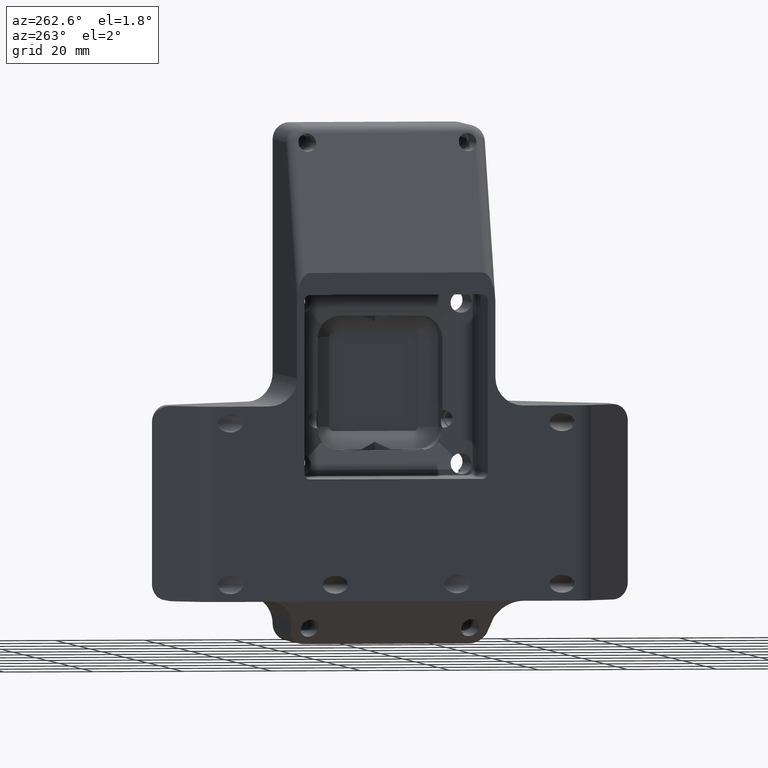
[diagram: clean part render]
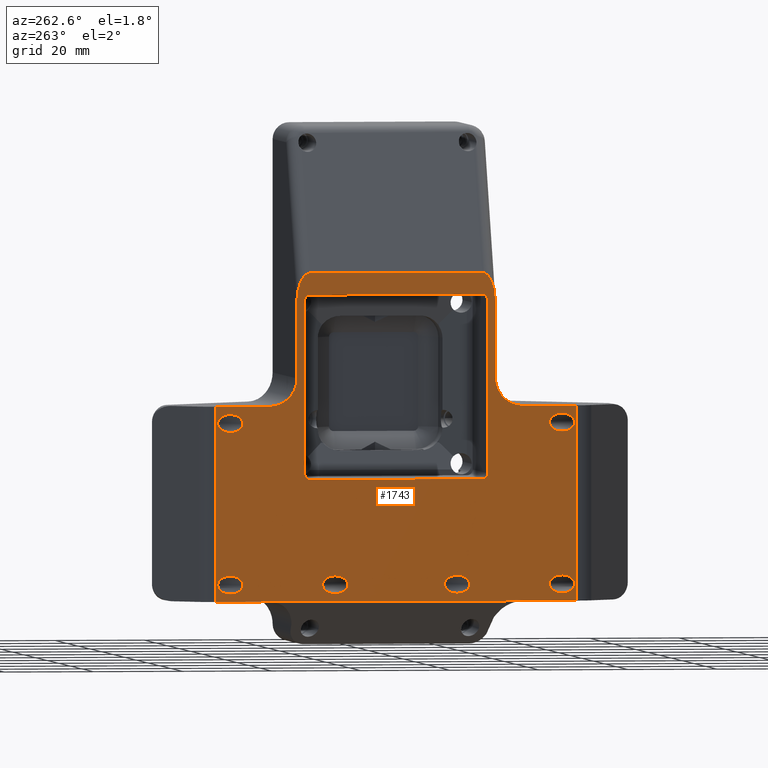
[diagram: same view with one face highlighted and labeled with its STEP entity id]
A machine part, auxiliary view. The second image highlights one B-rep face of the part: STEP entity #1743.
In plain terms, the highlighted planar face has unit normal (-1, 0, 0).
Its self-contained STEP definition (entity closure, byte-faithful):
#532=FACE_BOUND('',#3958,.F.);
#533=FACE_BOUND('',#3959,.F.);
#534=FACE_BOUND('',#3960,.F.);
#535=FACE_BOUND('',#3961,.F.);
#536=FACE_BOUND('',#3962,.F.);
#537=FACE_BOUND('',#3963,.F.);
#538=FACE_BOUND('',#3964,.F.);
#829=PLANE('',#25271);
#1743=ADVANCED_FACE('',(#532,#533,#534,#535,#536,#537,#538,#2839),#829,.T.);
#2839=FACE_OUTER_BOUND('',#3965,.F.);
#3958=EDGE_LOOP('',(#8310,#8311));
#3959=EDGE_LOOP('',(#8312,#8313));
#3960=EDGE_LOOP('',(#8314,#8315));
#3961=EDGE_LOOP('',(#8316,#8317,#8318,#8319,#8320,#8321,#8322,#8323));
#3962=EDGE_LOOP('',(#8324,#8325));
#3963=EDGE_LOOP('',(#8326,#8327));
#3964=EDGE_LOOP('',(#8328,#8329));
#3965=EDGE_LOOP('',(#8330,#8331,#8332,#8333,#8334,#8335,#8336,#8337,#8338,
#8339,#8340,#8341,#8342,#8343,#8344));
#8310=ORIENTED_EDGE('',*,*,#17094,.F.);
#8311=ORIENTED_EDGE('',*,*,#17093,.F.);
#8312=ORIENTED_EDGE('',*,*,#17096,.F.);
#8313=ORIENTED_EDGE('',*,*,#17095,.F.);
#8314=ORIENTED_EDGE('',*,*,#17098,.F.);
#8315=ORIENTED_EDGE('',*,*,#17097,.F.);
#8316=ORIENTED_EDGE('',*,*,#17124,.T.);
#8317=ORIENTED_EDGE('',*,*,#17125,.T.);
#8318=ORIENTED_EDGE('',*,*,#17126,.T.);
#8319=ORIENTED_EDGE('',*,*,#17127,.T.);
#8320=ORIENTED_EDGE('',*,*,#17128,.T.);
#8321=ORIENTED_EDGE('',*,*,#17129,.T.);
#8322=ORIENTED_EDGE('',*,*,#17130,.T.);
#8323=ORIENTED_EDGE('',*,*,#17123,.T.);
#8324=ORIENTED_EDGE('',*,*,#17084,.F.);
#8325=ORIENTED_EDGE('',*,*,#17083,.F.);
#8326=ORIENTED_EDGE('',*,*,#17082,.F.);
#8327=ORIENTED_EDGE('',*,*,#17081,.F.);
#8328=ORIENTED_EDGE('',*,*,#17080,.F.);
#8329=ORIENTED_EDGE('',*,*,#17079,.F.);
#8330=ORIENTED_EDGE('',*,*,#14754,.T.);
#8331=ORIENTED_EDGE('',*,*,#16830,.F.);
#8332=ORIENTED_EDGE('',*,*,#14735,.T.);
#8333=ORIENTED_EDGE('',*,*,#14736,.T.);
#8334=ORIENTED_EDGE('',*,*,#14737,.T.);
#8335=ORIENTED_EDGE('',*,*,#14693,.F.);
#8336=ORIENTED_EDGE('',*,*,#16824,.T.);
#8337=ORIENTED_EDGE('',*,*,#14694,.F.);
#8338=ORIENTED_EDGE('',*,*,#14744,.T.);
#8339=ORIENTED_EDGE('',*,*,#14745,.T.);
#8340=ORIENTED_EDGE('',*,*,#14746,.T.);
#8341=ORIENTED_EDGE('',*,*,#16828,.T.);
#8342=ORIENTED_EDGE('',*,*,#14747,.T.);
#8343=ORIENTED_EDGE('',*,*,#16826,.T.);
#8344=ORIENTED_EDGE('',*,*,#16825,.T.);
#13280=B_SPLINE_CURVE_WITH_KNOTS('',3,(#34452,#34453,#34454,#34455,#34456,
#34457,#34458,#34459,#34460,#34461,#34462,#34463,#34464,#34465,#34466,#34467,
#34468,#34469,#34470,#34471,#34472,#34473),.UNSPECIFIED.,.F.,.F.,(4,1,1,
1,1,1,1,1,1,1,1,1,1,1,1,1,1,1,1,4),(0.,0.0607136930699527,0.104185222214008,
0.156439083697468,0.208811066262238,0.261290927468003,0.313866846216007,
0.366514368739033,0.419207186822247,0.471929427496614,0.524677300328903,
0.577446750064447,0.630233836445114,0.683034594128992,0.735846526141736,
0.788667202244871,0.841494489585631,0.894326609221136,0.938355815317212,
1.),.UNSPECIFIED.);
#13281=B_SPLINE_CURVE_WITH_KNOTS('',3,(#34474,#34475,#34476,#34477,#34478,
#34479,#34480,#34481,#34482,#34483,#34484,#34485,#34486,#34487,#34488,#34489,
#34490,#34491,#34492,#34493,#34494,#34495),.UNSPECIFIED.,.F.,.F.,(4,1,1,
1,1,1,1,1,1,1,1,1,1,1,1,1,1,1,1,4),(0.,0.0616441846827868,0.105673390778862,
0.158505510414368,0.211332797755127,0.26415347385826,0.316965405871004,0.369766163554881,
0.422553249935547,0.47532269967109,0.528070572503378,0.580792813177745,0.633485631260957,
0.686133153783982,0.738709072531987,0.791188933737752,0.843560916302525,
0.895814777785989,0.939286306930049,1.),.UNSPECIFIED.);
#13326=B_SPLINE_CURVE_WITH_KNOTS('',3,(#37582,#37583,#37584,#37585,#37586,
#37587,#37588,#37589,#37590,#37591,#37592,#37593,#37594,#37595,#37596,#37597,
#37598,#37599,#37600,#37601,#37602),.UNSPECIFIED.,.F.,.F.,(4,1,1,1,1,1,1,
1,1,1,1,1,1,1,1,1,1,1,4),(0.,0.0649328079083257,0.111296166848411,0.166919357242821,
0.222523954089331,0.278106331035114,0.333647504888261,0.389150369804731,
0.444592989081672,0.499999999999999,0.555407010918325,0.610849630195267,
0.666352495111737,0.721893668964884,0.777476045910666,0.833080642757175,
0.888703833151585,0.93506719209167,1.),.UNSPECIFIED.);
#13327=B_SPLINE_CURVE_WITH_KNOTS('',3,(#37603,#37604,#37605,#37606,#37607,
#37608,#37609,#37610,#37611,#37612,#37613,#37614,#37615,#37616,#37617,#37618,
#37619,#37620,#37621,#37622,#37623),.UNSPECIFIED.,.F.,.F.,(4,1,1,1,1,1,1,
1,1,1,1,1,1,1,1,1,1,1,4),(0.,0.0649328079083291,0.111296166848414,0.166919357242824,
0.222523954089334,0.278106331035118,0.333647504888267,0.389150369804736,
0.444592989081678,0.500000000000003,0.55540701091833,0.61084963019527,0.66635249511174,
0.721893668964887,0.77747604591067,0.833080642757179,0.88870383315159,0.935067192091675,
1.),.UNSPECIFIED.);
#13328=B_SPLINE_CURVE_WITH_KNOTS('',3,(#37624,#37625,#37626,#37627,#37628,
#37629,#37630,#37631,#37632,#37633,#37634,#37635,#37636,#37637,#37638,#37639,
#37640,#37641,#37642,#37643,#37644),.UNSPECIFIED.,.F.,.F.,(4,1,1,1,1,1,1,
1,1,1,1,1,1,1,1,1,1,1,4),(0.,0.0649328079083277,0.111296166848413,0.166919357242823,
0.222523954089331,0.278106331035114,0.333647504888261,0.389150369804731,
0.444592989081672,0.499999999999998,0.555407010918325,0.610849630195266,
0.666352495111735,0.721893668964882,0.777476045910665,0.833080642757175,
0.888703833151586,0.935067192091671,1.),.UNSPECIFIED.);
#13329=B_SPLINE_CURVE_WITH_KNOTS('',3,(#37645,#37646,#37647,#37648,#37649,
#37650,#37651,#37652,#37653,#37654,#37655,#37656,#37657,#37658,#37659,#37660,
#37661,#37662,#37663,#37664,#37665),.UNSPECIFIED.,.F.,.F.,(4,1,1,1,1,1,1,
1,1,1,1,1,1,1,1,1,1,1,4),(0.,0.0649328079083267,0.111296166848414,0.166919357242824,
0.222523954089333,0.278106331035114,0.333647504888261,0.389150369804731,
0.444592989081672,0.499999999999999,0.555407010918326,0.610849630195267,
0.666352495111738,0.721893668964885,0.777476045910668,0.833080642757177,
0.888703833151588,0.935067192091673,1.),.UNSPECIFIED.);
#13330=B_SPLINE_CURVE_WITH_KNOTS('',3,(#37666,#37667,#37668,#37669,#37670,
#37671,#37672,#37673,#37674,#37675,#37676,#37677,#37678,#37679,#37680,#37681,
#37682,#37683,#37684,#37685,#37686),.UNSPECIFIED.,.F.,.F.,(4,1,1,1,1,1,1,
1,1,1,1,1,1,1,1,1,1,1,4),(0.,0.064932807908329,0.111296166848414,0.166919357242824,
0.222523954089334,0.278106331035116,0.333647504888265,0.389150369804735,
0.444592989081676,0.500000000000003,0.55540701091833,0.610849630195271,0.66635249511174,
0.721893668964888,0.777476045910671,0.83308064275718,0.88870383315159,0.935067192091675,
1.),.UNSPECIFIED.);
#13331=B_SPLINE_CURVE_WITH_KNOTS('',3,(#37687,#37688,#37689,#37690,#37691,
#37692,#37693,#37694,#37695,#37696,#37697,#37698,#37699,#37700,#37701,#37702,
#37703,#37704,#37705,#37706,#37707),.UNSPECIFIED.,.F.,.F.,(4,1,1,1,1,1,1,
1,1,1,1,1,1,1,1,1,1,1,4),(0.,0.0649328079083289,0.111296166848414,0.166919357242824,
0.222523954089333,0.278106331035115,0.333647504888264,0.389150369804733,
0.444592989081674,0.5,0.555407010918327,0.610849630195268,0.666352495111737,
0.721893668964885,0.777476045910667,0.833080642757176,0.888703833151586,
0.935067192091671,1.),.UNSPECIFIED.);
#13332=B_SPLINE_CURVE_WITH_KNOTS('',3,(#37716,#37717,#37718,#37719,#37720,
#37721,#37722,#37723,#37724,#37725,#37726,#37727,#37728,#37729,#37730,#37731,
#37732,#37733,#37734,#37735,#37736),.UNSPECIFIED.,.F.,.F.,(4,1,1,1,1,1,1,
1,1,1,1,1,1,1,1,1,1,1,4),(0.,0.0649328079083258,0.111296166848411,0.166919357242822,
0.222523954089332,0.278106331035116,0.333647504888263,0.389150369804732,
0.444592989081673,0.5,0.555407010918328,0.610849630195268,0.666352495111736,
0.721893668964883,0.777476045910667,0.833080642757178,0.888703833151587,
0.935067192091673,1.),.UNSPECIFIED.);
#13333=B_SPLINE_CURVE_WITH_KNOTS('',3,(#37737,#37738,#37739,#37740,#37741,
#37742,#37743,#37744,#37745,#37746,#37747,#37748,#37749,#37750,#37751,#37752,
#37753,#37754,#37755,#37756,#37757),.UNSPECIFIED.,.F.,.F.,(4,1,1,1,1,1,1,
1,1,1,1,1,1,1,1,1,1,1,4),(0.,0.064932807908329,0.111296166848414,0.166919357242824,
0.222523954089333,0.278106331035116,0.333647504888263,0.389150369804733,
0.444592989081674,0.500000000000001,0.555407010918327,0.610849630195268,
0.666352495111736,0.721893668964884,0.777476045910666,0.833080642757176,
0.888703833151586,0.935067192091671,1.),.UNSPECIFIED.);
#13334=B_SPLINE_CURVE_WITH_KNOTS('',3,(#37758,#37759,#37760,#37761,#37762,
#37763,#37764,#37765,#37766,#37767,#37768,#37769,#37770,#37771,#37772,#37773,
#37774,#37775,#37776,#37777,#37778),.UNSPECIFIED.,.F.,.F.,(4,1,1,1,1,1,1,
1,1,1,1,1,1,1,1,1,1,1,4),(0.,0.0649328079083255,0.111296166848411,0.166919357242821,
0.222523954089331,0.278106331035114,0.333647504888263,0.389150369804733,
0.444592989081674,0.5,0.555407010918326,0.610849630195267,0.666352495111738,
0.721893668964887,0.77747604591067,0.83308064275718,0.88870383315159,0.935067192091675,
1.),.UNSPECIFIED.);
#13335=B_SPLINE_CURVE_WITH_KNOTS('',3,(#37779,#37780,#37781,#37782,#37783,
#37784,#37785,#37786,#37787,#37788,#37789,#37790,#37791,#37792,#37793,#37794,
#37795,#37796,#37797,#37798,#37799),.UNSPECIFIED.,.F.,.F.,(4,1,1,1,1,1,1,
1,1,1,1,1,1,1,1,1,1,1,4),(0.,0.0649328079083291,0.111296166848414,0.166919357242824,
0.222523954089334,0.278106331035118,0.333647504888266,0.389150369804736,
0.444592989081677,0.500000000000003,0.555407010918329,0.61084963019527,0.66635249511174,
0.721893668964886,0.777476045910668,0.833080642757177,0.888703833151588,
0.935067192091673,1.),.UNSPECIFIED.);
#13336=B_SPLINE_CURVE_WITH_KNOTS('',3,(#37800,#37801,#37802,#37803,#37804,
#37805,#37806,#37807,#37808,#37809,#37810,#37811,#37812,#37813,#37814,#37815,
#37816,#37817,#37818,#37819,#37820),.UNSPECIFIED.,.F.,.F.,(4,1,1,1,1,1,1,
1,1,1,1,1,1,1,1,1,1,1,4),(0.,0.0649328079083298,0.111296166848416,0.166919357242826,
0.222523954089335,0.278106331035117,0.333647504888264,0.389150369804734,
0.444592989081676,0.500000000000002,0.555407010918328,0.610849630195269,
0.666352495111739,0.721893668964885,0.777476045910669,0.833080642757179,
0.888703833151591,0.935067192091675,1.),.UNSPECIFIED.);
#13337=B_SPLINE_CURVE_WITH_KNOTS('',3,(#37821,#37822,#37823,#37824,#37825,
#37826,#37827,#37828,#37829,#37830,#37831,#37832,#37833,#37834,#37835,#37836,
#37837,#37838,#37839,#37840,#37841),.UNSPECIFIED.,.F.,.F.,(4,1,1,1,1,1,1,
1,1,1,1,1,1,1,1,1,1,1,4),(0.,0.0649328079083266,0.111296166848412,0.166919357242822,
0.222523954089331,0.278106331035113,0.333647504888261,0.38915036980473,0.444592989081671,
0.499999999999997,0.555407010918324,0.610849630195265,0.666352495111736,
0.721893668964884,0.777476045910667,0.833080642757176,0.888703833151586,
0.935067192091671,1.),.UNSPECIFIED.);
#13378=CIRCLE('',#23331,6.25);
#13381=CIRCLE('',#23334,6.25);
#14386=CIRCLE('',#24339,1.25);
#14387=CIRCLE('',#24340,1.25);
#14388=CIRCLE('',#24341,1.25);
#14389=CIRCLE('',#24342,1.25);
#14693=EDGE_CURVE('',#23132,#23131,#13280,.T.);
#14694=EDGE_CURVE('',#23130,#23129,#13281,.T.);
#14735=EDGE_CURVE('',#23107,#23084,#17757,.T.);
#14736=EDGE_CURVE('',#23084,#23083,#13378,.T.);
#14737=EDGE_CURVE('',#23083,#23131,#17758,.T.);
#14744=EDGE_CURVE('',#23130,#23076,#17763,.T.);
#14745=EDGE_CURVE('',#23076,#23075,#13381,.T.);
#14746=EDGE_CURVE('',#23075,#23112,#17764,.T.);
#14747=EDGE_CURVE('',#23109,#23117,#17765,.T.);
#14754=EDGE_CURVE('',#23113,#23106,#17770,.T.);
#16824=EDGE_CURVE('',#23132,#23129,#18998,.T.);
#16825=EDGE_CURVE('',#21470,#23113,#18999,.T.);
#16826=EDGE_CURVE('',#23117,#21470,#19000,.T.);
#16828=EDGE_CURVE('',#23112,#23109,#19002,.T.);
#16830=EDGE_CURVE('',#23107,#23106,#19004,.T.);
#17079=EDGE_CURVE('',#22924,#22923,#13326,.T.);
#17080=EDGE_CURVE('',#22923,#22924,#13327,.T.);
#17081=EDGE_CURVE('',#22893,#22894,#13328,.T.);
#17082=EDGE_CURVE('',#22894,#22893,#13329,.T.);
#17083=EDGE_CURVE('',#22879,#22880,#13330,.T.);
#17084=EDGE_CURVE('',#22880,#22879,#13331,.T.);
#17093=EDGE_CURVE('',#22983,#22984,#13332,.T.);
#17094=EDGE_CURVE('',#22984,#22983,#13333,.T.);
#17095=EDGE_CURVE('',#22969,#22970,#13334,.T.);
#17096=EDGE_CURVE('',#22970,#22969,#13335,.T.);
#17097=EDGE_CURVE('',#22954,#22953,#13336,.T.);
#17098=EDGE_CURVE('',#22953,#22954,#13337,.T.);
#17123=EDGE_CURVE('',#23051,#23052,#14386,.T.);
#17124=EDGE_CURVE('',#23052,#23053,#19107,.T.);
#17125=EDGE_CURVE('',#23053,#23054,#14387,.T.);
#17126=EDGE_CURVE('',#23054,#23055,#19108,.T.);
#17127=EDGE_CURVE('',#23055,#23056,#14388,.T.);
#17128=EDGE_CURVE('',#23056,#23057,#19109,.T.);
#17129=EDGE_CURVE('',#23057,#23058,#14389,.T.);
#17130=EDGE_CURVE('',#23058,#23051,#19110,.T.);
#17757=LINE('',#34944,#19539);
#17758=LINE('',#34946,#19540);
#17763=LINE('',#34953,#19545);
#17764=LINE('',#34955,#19546);
#17765=LINE('',#34956,#19547);
#17770=LINE('',#34963,#19552);
#18998=LINE('',#37033,#20780);
#18999=LINE('',#37034,#20781);
#19000=LINE('',#37035,#20782);
#19002=LINE('',#37037,#20784);
#19004=LINE('',#37039,#20786);
#19107=LINE('',#37867,#20889);
#19108=LINE('',#37869,#20890);
#19109=LINE('',#37871,#20891);
#19110=LINE('',#37873,#20892);
#19539=VECTOR('',#25741,11.9419260639465);
#19540=VECTOR('',#25744,17.0087232457882);
#19545=VECTOR('',#25753,17.0087232458464);
#19546=VECTOR('',#25756,11.9419260639363);
#19547=VECTOR('',#25757,11.9419260639463);
#19552=VECTOR('',#25766,11.9419260640047);
#20780=VECTOR('',#28678,38.5531777689233);
#20781=VECTOR('',#28679,49.1288667981426);
#20782=VECTOR('',#28680,7.92431097074586);
#20784=VECTOR('',#28682,43.4999999999985);
#20786=VECTOR('',#28684,43.5000000000006);
#20889=VECTOR('',#29109,38.6);
#20890=VECTOR('',#29112,38.5999999999998);
#20891=VECTOR('',#29115,38.6);
#20892=VECTOR('',#29118,38.6);
#21470=VERTEX_POINT('',#32254);
#22879=VERTEX_POINT('',#33663);
#22880=VERTEX_POINT('',#33664);
#22893=VERTEX_POINT('',#33677);
#22894=VERTEX_POINT('',#33678);
#22923=VERTEX_POINT('',#33707);
#22924=VERTEX_POINT('',#33708);
#22953=VERTEX_POINT('',#33737);
#22954=VERTEX_POINT('',#33738);
#22969=VERTEX_POINT('',#33753);
#22970=VERTEX_POINT('',#33754);
#22983=VERTEX_POINT('',#33767);
#22984=VERTEX_POINT('',#33768);
#23051=VERTEX_POINT('',#33835);
#23052=VERTEX_POINT('',#33836);
#23053=VERTEX_POINT('',#33837);
#23054=VERTEX_POINT('',#33838);
#23055=VERTEX_POINT('',#33839);
#23056=VERTEX_POINT('',#33840);
#23057=VERTEX_POINT('',#33841);
#23058=VERTEX_POINT('',#33842);
#23075=VERTEX_POINT('',#33859);
#23076=VERTEX_POINT('',#33860);
#23083=VERTEX_POINT('',#33867);
#23084=VERTEX_POINT('',#33868);
#23106=VERTEX_POINT('',#33890);
#23107=VERTEX_POINT('',#33891);
#23109=VERTEX_POINT('',#33893);
#23112=VERTEX_POINT('',#33896);
#23113=VERTEX_POINT('',#33897);
#23117=VERTEX_POINT('',#33901);
#23129=VERTEX_POINT('',#33913);
#23130=VERTEX_POINT('',#33914);
#23131=VERTEX_POINT('',#33915);
#23132=VERTEX_POINT('',#33916);
#23331=AXIS2_PLACEMENT_3D('',#34945,#25742,#25743);
#23334=AXIS2_PLACEMENT_3D('',#34954,#25754,#25755);
#24339=AXIS2_PLACEMENT_3D('',#37866,#29107,#29108);
#24340=AXIS2_PLACEMENT_3D('',#37868,#29110,#29111);
#24341=AXIS2_PLACEMENT_3D('',#37870,#29113,#29114);
#24342=AXIS2_PLACEMENT_3D('',#37872,#29116,#29117);
#25271=AXIS2_PLACEMENT_3D('',#39350,#31335,#31336);
#25741=DIRECTION('',(0.,-1.,0.));
#25742=DIRECTION('',(-1.,0.,0.));
#25743=DIRECTION('',(0.,0.,-1.));
#25744=DIRECTION('',(0.,0.,1.));
#25753=DIRECTION('',(0.,0.,-1.));
#25754=DIRECTION('',(-1.,0.,0.));
#25755=DIRECTION('',(0.,1.,0.));
#25756=DIRECTION('',(0.,-1.,0.));
#25757=DIRECTION('',(0.,1.,0.));
#25766=DIRECTION('',(0.,1.,0.));
#28678=DIRECTION('',(0.,-1.,0.));
#28679=DIRECTION('',(0.,1.,0.));
#28680=DIRECTION('',(0.,1.,0.));
#28682=DIRECTION('',(0.,0.,-1.));
#28684=DIRECTION('',(0.,0.,-1.));
#29107=DIRECTION('',(-1.,0.,0.));
#29108=DIRECTION('',(0.,1.,0.));
#29109=DIRECTION('',(0.,-1.,0.));
#29110=DIRECTION('',(-1.,0.,0.));
#29111=DIRECTION('',(0.,0.,-1.));
#29112=DIRECTION('',(0.,0.,1.));
#29113=DIRECTION('',(-1.,0.,0.));
#29114=DIRECTION('',(0.,-1.,0.));
#29115=DIRECTION('',(0.,1.,0.));
#29116=DIRECTION('',(-1.,0.,0.));
#29117=DIRECTION('',(0.,0.,1.));
#29118=DIRECTION('',(0.,0.,-1.));
#31335=DIRECTION('',(-1.,0.,0.));
#31336=DIRECTION('',(0.,-1.,0.));
#32254=CARTESIAN_POINT('',(32.8649997447714,-220.602275070474,-47.7499928773722));
#33663=CARTESIAN_POINT('',(32.8649997233776,-237.236281675135,-9.99999607729809));
#33664=CARTESIAN_POINT('',(32.8649997233776,-237.236281675135,-5.99999607726352));
#33677=CARTESIAN_POINT('',(32.8649997233776,-237.236281675135,-45.9999960772981));
#33678=CARTESIAN_POINT('',(32.8649997233776,-237.236281675135,-41.9999960772635));
#33707=CARTESIAN_POINT('',(32.8649997233776,-186.324593429704,-41.9999960772636));
#33708=CARTESIAN_POINT('',(32.8649997233776,-186.324593429704,-45.9999960772981));
#33737=CARTESIAN_POINT('',(32.8649997661651,-213.675395658568,-41.9999960772636));
#33738=CARTESIAN_POINT('',(32.8649997661651,-213.675395658568,-45.9999960772981));
#33753=CARTESIAN_POINT('',(32.8649997661651,-162.763707413137,-9.99999607729813));
#33754=CARTESIAN_POINT('',(32.8649997661651,-162.763707413137,-5.99999607726357));
#33767=CARTESIAN_POINT('',(32.8649997661651,-162.763707413137,-45.9999960772981));
#33768=CARTESIAN_POINT('',(32.8649997661651,-162.763707413137,-41.9999960772635));
#33835=CARTESIAN_POINT('',(32.8649997420102,-179.449995593301,-19.2999959329658));
#33836=CARTESIAN_POINT('',(32.8649997420102,-180.699995593301,-20.5499959329658));
#33837=CARTESIAN_POINT('',(32.8649997420102,-219.299995593301,-20.5499959329658));
#33838=CARTESIAN_POINT('',(32.8649997420102,-220.549995593301,-19.2999959329658));
#33839=CARTESIAN_POINT('',(32.8649997420102,-220.549995593301,19.300004067034));
#33840=CARTESIAN_POINT('',(32.8649997420102,-219.299995593301,20.550004067034));
#33841=CARTESIAN_POINT('',(32.8649997420101,-180.699995593301,20.5500040670342));
#33842=CARTESIAN_POINT('',(32.8649997420101,-179.449995593301,19.3000040670342));
#33859=CARTESIAN_POINT('',(32.8649997447713,-228.526586041226,-4.2499928606736));
#33860=CARTESIAN_POINT('',(32.8649997447713,-222.276586041218,2.00000713932429));
#33867=CARTESIAN_POINT('',(32.8649997447713,-177.723408272295,2.00000713938248));
#33868=CARTESIAN_POINT('',(32.8649997447713,-171.473408272287,-4.24999286066901));
#33890=CARTESIAN_POINT('',(32.8649997447713,-159.531482208331,-47.7499928606692));
#33891=CARTESIAN_POINT('',(32.8649997447713,-159.531482208326,-4.24999286066881));
#33893=CARTESIAN_POINT('',(32.8649997447714,-240.468512105163,-47.7499928606695));
#33896=CARTESIAN_POINT('',(32.8649997447714,-240.468512105172,-4.24999286067197));
#33897=CARTESIAN_POINT('',(32.8649997376732,-171.473408271957,-47.749992864845));
#33901=CARTESIAN_POINT('',(32.8649997376733,-228.526585807445,-47.7499928648459));
#33913=CARTESIAN_POINT('',(32.8649997447712,-219.276585212485,25.4500040336293));
#33914=CARTESIAN_POINT('',(32.8650076314636,-222.276586088457,19.0087645054942));
#33915=CARTESIAN_POINT('',(32.8650076314635,-177.723408225056,19.0087645054942));
#33916=CARTESIAN_POINT('',(32.8649997447712,-180.723409101027,25.4500040336293));
#34452=CARTESIAN_POINT('',(32.8649997447716,-180.723410758522,25.4500040336287));
#34453=CARTESIAN_POINT('',(32.8649859549965,-180.568042208951,25.450180955246));
#34454=CARTESIAN_POINT('',(32.865006638924,-180.302781610225,25.4044391384811));
#34455=CARTESIAN_POINT('',(32.8650061376379,-179.936059435461,25.237894519922));
#34456=CARTESIAN_POINT('',(32.8649982363121,-179.62622308981,25.0176524220176));
#34457=CARTESIAN_POINT('',(32.864999654495,-179.339152742586,24.7355697436599));
#34458=CARTESIAN_POINT('',(32.8650098248844,-179.088367415229,24.4204109318403));
#34459=CARTESIAN_POINT('',(32.8650003804266,-178.868884090351,24.0821798047871));
#34460=CARTESIAN_POINT('',(32.8649966484026,-178.676409228807,23.7274476720394));
#34461=CARTESIAN_POINT('',(32.8650190271969,-178.507489994002,23.3606025382443));
#34462=CARTESIAN_POINT('',(32.8649934999329,-178.359562245102,22.984591512209));
#34463=CARTESIAN_POINT('',(32.8650063696592,-178.230315519533,22.6015935099589));
#34464=CARTESIAN_POINT('',(32.8649980791579,-178.118163682225,22.2131002158986));
#34465=CARTESIAN_POINT('',(32.8650027165937,-178.021707916966,21.8202966855207));
#34466=CARTESIAN_POINT('',(32.865000292945,-177.939921077442,21.4240816573949));
#34467=CARTESIAN_POINT('',(32.8649995445503,-177.871953636285,21.0251868474883));
#34468=CARTESIAN_POINT('',(32.8650011520353,-177.817147479549,20.6242105997387));
#34469=CARTESIAN_POINT('',(32.8649992305938,-177.775012062508,20.2216583817557));
#34470=CARTESIAN_POINT('',(32.8650003691949,-177.746821904881,19.8404062813261));
#34471=CARTESIAN_POINT('',(32.8649995207516,-177.728011427879,19.4360411774945));
#34472=CARTESIAN_POINT('',(32.8650000390732,-177.723408754231,19.1662016016526));
#34473=CARTESIAN_POINT('',(32.864999786952,-177.723408201495,19.0087877697908));
#34474=CARTESIAN_POINT('',(32.8649997869521,-222.276586112017,19.008787769791));
#34475=CARTESIAN_POINT('',(32.8650000390733,-222.276585559281,19.1662016016528));
#34476=CARTESIAN_POINT('',(32.8649995207517,-222.271982885633,19.4360411774946));
#34477=CARTESIAN_POINT('',(32.865000369195,-222.253172408631,19.8404062813262));
#34478=CARTESIAN_POINT('',(32.8649992305938,-222.224982251004,20.2216583817558));
#34479=CARTESIAN_POINT('',(32.8650011520353,-222.182846833964,20.6242105997387));
#34480=CARTESIAN_POINT('',(32.8649995445503,-222.128040677228,21.0251868474884));
#34481=CARTESIAN_POINT('',(32.8650002929451,-222.06007323607,21.4240816573949));
#34482=CARTESIAN_POINT('',(32.8650027165937,-221.978286396546,21.8202966855206));
#34483=CARTESIAN_POINT('',(32.864998079158,-221.881830631288,22.2131002158985));
#34484=CARTESIAN_POINT('',(32.8650063696593,-221.769678793979,22.6015935099588));
#34485=CARTESIAN_POINT('',(32.864993499933,-221.640432068411,22.9845915122089));
#34486=CARTESIAN_POINT('',(32.8650190271969,-221.49250431951,23.3606025382441));
#34487=CARTESIAN_POINT('',(32.8649966484026,-221.323585084705,23.7274476720392));
#34488=CARTESIAN_POINT('',(32.8650003804267,-221.131110223161,24.0821798047868));
#34489=CARTESIAN_POINT('',(32.8650098248845,-220.911626898283,24.4204109318403));
#34490=CARTESIAN_POINT('',(32.8649996544951,-220.660841570927,24.73556974366));
#34491=CARTESIAN_POINT('',(32.8649982363122,-220.373771223703,25.0176524220173));
#34492=CARTESIAN_POINT('',(32.8650061376379,-220.063934878052,25.237894519922));
#34493=CARTESIAN_POINT('',(32.865006638924,-219.697212703287,25.4044391384811));
#34494=CARTESIAN_POINT('',(32.8649859549965,-219.431952104562,25.450180955246));
#34495=CARTESIAN_POINT('',(32.8649997447716,-219.276583554991,25.4500040336288));
#34944=CARTESIAN_POINT('',(32.8649997447713,-159.531482208326,-4.24999286066886));
#34945=CARTESIAN_POINT('',(32.8649997447713,-171.473408272295,2.00000713933092));
#34946=CARTESIAN_POINT('',(32.8649997447713,-177.723408272295,2.00000713938248));
#34953=CARTESIAN_POINT('',(32.8649997447713,-222.276586041218,19.0087303851707));
#34954=CARTESIAN_POINT('',(32.8649997447713,-228.526586041218,2.0000071393264));
#34955=CARTESIAN_POINT('',(32.8649997447713,-228.52658604123,-4.2499928606736));
#34956=CARTESIAN_POINT('',(32.8649997447714,-240.468512105166,-47.74999286067));
#34963=CARTESIAN_POINT('',(32.8649997447713,-171.473408272331,-47.7499928606686));
#37033=CARTESIAN_POINT('',(32.8649997447713,-180.723408272295,25.45000403363));
#37034=CARTESIAN_POINT('',(32.8649997447714,-220.602275070474,-47.7499928773722));
#37035=CARTESIAN_POINT('',(32.8649997447714,-228.526586041219,-47.7499928773722));
#37037=CARTESIAN_POINT('',(32.8649997447714,-240.468512105166,-4.24999286067067));
#37039=CARTESIAN_POINT('',(32.8649997447713,-159.531482208326,-4.2499928606686));
#37582=CARTESIAN_POINT('',(32.8649997447866,-186.324593579445,-45.9999960772938));
#37583=CARTESIAN_POINT('',(32.8649776753435,-186.159424467454,-45.9999726405201));
#37584=CARTESIAN_POINT('',(32.8649821842618,-185.876394489799,-45.9825470196558));
#37585=CARTESIAN_POINT('',(32.8650050404739,-185.457277664664,-45.9105772476371));
#37586=CARTESIAN_POINT('',(32.86498335362,-185.070555138237,-45.8019733876881));
#37587=CARTESIAN_POINT('',(32.8649830889907,-184.678254481975,-45.6373509326851));
#37588=CARTESIAN_POINT('',(32.8650048213234,-184.312480583443,-45.4197840034969));
#37589=CARTESIAN_POINT('',(32.8649361362141,-183.986442046817,-45.1455791928242));
#37590=CARTESIAN_POINT('',(32.8650443533422,-183.720014668211,-44.8123018650002));
#37591=CARTESIAN_POINT('',(32.8649275782307,-183.539272015446,-44.4243114808304));
#37592=CARTESIAN_POINT('',(32.8652030493561,-183.475122103967,-43.9999960772809));
#37593=CARTESIAN_POINT('',(32.8649275782306,-183.539272015445,-43.5756806737313));
#37594=CARTESIAN_POINT('',(32.8650443533422,-183.720014668211,-43.1876902895616));
#37595=CARTESIAN_POINT('',(32.8649361362141,-183.986442046817,-42.8544129617375));
#37596=CARTESIAN_POINT('',(32.8650048213234,-184.312480583443,-42.5802081510648));
#37597=CARTESIAN_POINT('',(32.8649830889907,-184.678254481975,-42.3626412218766));
#37598=CARTESIAN_POINT('',(32.86498335362,-185.070555138237,-42.1980187668736));
#37599=CARTESIAN_POINT('',(32.8650050404738,-185.457277664664,-42.0894149069246));
#37600=CARTESIAN_POINT('',(32.8649821842618,-185.876394489799,-42.017445134906));
#37601=CARTESIAN_POINT('',(32.8649776753435,-186.159424467454,-42.0000195140415));
#37602=CARTESIAN_POINT('',(32.8649997447866,-186.324593579445,-41.9999960772679));
#37603=CARTESIAN_POINT('',(32.8649997447561,-186.32459332275,-41.9999960772679));
#37604=CARTESIAN_POINT('',(32.8650218141992,-186.489762434742,-42.0000195140416));
#37605=CARTESIAN_POINT('',(32.8650173052809,-186.772792412397,-42.017445134906));
#37606=CARTESIAN_POINT('',(32.8649944490688,-187.191909237532,-42.0894149069246));
#37607=CARTESIAN_POINT('',(32.8650161359227,-187.578631763958,-42.1980187668735));
#37608=CARTESIAN_POINT('',(32.865016400552,-187.97093242022,-42.3626412218766));
#37609=CARTESIAN_POINT('',(32.8649946682193,-188.336706318752,-42.5802081510648));
#37610=CARTESIAN_POINT('',(32.8650633533286,-188.662744855379,-42.8544129617375));
#37611=CARTESIAN_POINT('',(32.8649551362005,-188.929172233984,-43.1876902895615));
#37612=CARTESIAN_POINT('',(32.8650719113121,-189.10991488675,-43.5756806737314));
#37613=CARTESIAN_POINT('',(32.8647964401866,-189.174064798229,-43.9999960772809));
#37614=CARTESIAN_POINT('',(32.8650719113121,-189.10991488675,-44.4243114808304));
#37615=CARTESIAN_POINT('',(32.8649551362005,-188.929172233984,-44.8123018650002));
#37616=CARTESIAN_POINT('',(32.8650633533286,-188.662744855379,-45.1455791928243));
#37617=CARTESIAN_POINT('',(32.8649946682193,-188.336706318752,-45.4197840034969));
#37618=CARTESIAN_POINT('',(32.865016400552,-187.97093242022,-45.6373509326852));
#37619=CARTESIAN_POINT('',(32.8650161359227,-187.578631763958,-45.8019733876882));
#37620=CARTESIAN_POINT('',(32.8649944490688,-187.191909237532,-45.9105772476371));
#37621=CARTESIAN_POINT('',(32.8650173052809,-186.772792412397,-45.9825470196557));
#37622=CARTESIAN_POINT('',(32.8650218141991,-186.489762434742,-45.9999726405201));
#37623=CARTESIAN_POINT('',(32.8649997447561,-186.32459332275,-45.9999960772938));
#37624=CARTESIAN_POINT('',(32.8649997447866,-237.236281824877,-45.9999960772938));
#37625=CARTESIAN_POINT('',(32.8649776753436,-237.071112712885,-45.9999726405201));
#37626=CARTESIAN_POINT('',(32.8649821842619,-236.78808273523,-45.9825470196557));
#37627=CARTESIAN_POINT('',(32.8650050404739,-236.368965910095,-45.9105772476371));
#37628=CARTESIAN_POINT('',(32.86498335362,-235.982243383669,-45.8019733876881));
#37629=CARTESIAN_POINT('',(32.8649830889907,-235.589942727406,-45.6373509326851));
#37630=CARTESIAN_POINT('',(32.8650048213234,-235.224168828875,-45.4197840034968));
#37631=CARTESIAN_POINT('',(32.8649361362141,-234.898130292248,-45.1455791928242));
#37632=CARTESIAN_POINT('',(32.8650443533422,-234.631702913643,-44.8123018650001));
#37633=CARTESIAN_POINT('',(32.8649275782307,-234.450960260877,-44.4243114808303));
#37634=CARTESIAN_POINT('',(32.8652030493561,-234.386810349398,-43.9999960772808));
#37635=CARTESIAN_POINT('',(32.8649275782307,-234.450960260877,-43.5756806737313));
#37636=CARTESIAN_POINT('',(32.8650443533422,-234.631702913643,-43.1876902895615));
#37637=CARTESIAN_POINT('',(32.8649361362141,-234.898130292248,-42.8544129617374));
#37638=CARTESIAN_POINT('',(32.8650048213234,-235.224168828875,-42.5802081510647));
#37639=CARTESIAN_POINT('',(32.8649830889907,-235.589942727406,-42.3626412218765));
#37640=CARTESIAN_POINT('',(32.86498335362,-235.982243383669,-42.1980187668735));
#37641=CARTESIAN_POINT('',(32.8650050404739,-236.368965910095,-42.0894149069245));
#37642=CARTESIAN_POINT('',(32.8649821842618,-236.78808273523,-42.0174451349059));
#37643=CARTESIAN_POINT('',(32.8649776753436,-237.071112712885,-42.0000195140415));
#37644=CARTESIAN_POINT('',(32.8649997447866,-237.236281824877,-41.9999960772679));
#37645=CARTESIAN_POINT('',(32.8649997447561,-237.236281568182,-41.9999960772679));
#37646=CARTESIAN_POINT('',(32.8650218141992,-237.401450680173,-42.0000195140416));
#37647=CARTESIAN_POINT('',(32.8650173052809,-237.684480657828,-42.0174451349059));
#37648=CARTESIAN_POINT('',(32.8649944490689,-238.103597482963,-42.0894149069245));
#37649=CARTESIAN_POINT('',(32.8650161359228,-238.49032000939,-42.1980187668735));
#37650=CARTESIAN_POINT('',(32.865016400552,-238.882620665652,-42.3626412218765));
#37651=CARTESIAN_POINT('',(32.8649946682193,-239.248394564184,-42.5802081510648));
#37652=CARTESIAN_POINT('',(32.8650633533286,-239.57443310081,-42.8544129617374));
#37653=CARTESIAN_POINT('',(32.8649551362005,-239.840860479416,-43.1876902895615));
#37654=CARTESIAN_POINT('',(32.8650719113121,-240.021603132181,-43.5756806737313));
#37655=CARTESIAN_POINT('',(32.8647964401866,-240.08575304366,-43.9999960772808));
#37656=CARTESIAN_POINT('',(32.8650719113121,-240.021603132181,-44.4243114808303));
#37657=CARTESIAN_POINT('',(32.8649551362005,-239.840860479416,-44.8123018650001));
#37658=CARTESIAN_POINT('',(32.8650633533286,-239.57443310081,-45.1455791928242));
#37659=CARTESIAN_POINT('',(32.8649946682194,-239.248394564184,-45.4197840034969));
#37660=CARTESIAN_POINT('',(32.865016400552,-238.882620665652,-45.6373509326851));
#37661=CARTESIAN_POINT('',(32.8650161359228,-238.49032000939,-45.8019733876881));
#37662=CARTESIAN_POINT('',(32.8649944490688,-238.103597482963,-45.9105772476371));
#37663=CARTESIAN_POINT('',(32.8650173052809,-237.684480657828,-45.9825470196557));
#37664=CARTESIAN_POINT('',(32.8650218141992,-237.401450680173,-45.9999726405201));
#37665=CARTESIAN_POINT('',(32.8649997447561,-237.236281568182,-45.9999960772938));
#37666=CARTESIAN_POINT('',(32.8649997447866,-237.236281824877,-9.99999607729377));
#37667=CARTESIAN_POINT('',(32.8649776753435,-237.071112712885,-9.99997264052007));
#37668=CARTESIAN_POINT('',(32.8649821842618,-236.78808273523,-9.9825470196557));
#37669=CARTESIAN_POINT('',(32.8650050404739,-236.368965910095,-9.9105772476371));
#37670=CARTESIAN_POINT('',(32.86498335362,-235.982243383669,-9.8019733876881));
#37671=CARTESIAN_POINT('',(32.8649830889907,-235.589942727406,-9.6373509326851));
#37672=CARTESIAN_POINT('',(32.8650048213234,-235.224168828875,-9.41978400349691));
#37673=CARTESIAN_POINT('',(32.8649361362141,-234.898130292248,-9.14557919282419));
#37674=CARTESIAN_POINT('',(32.8650443533422,-234.631702913643,-8.81230186500013));
#37675=CARTESIAN_POINT('',(32.8649275782306,-234.450960260877,-8.42431148083032));
#37676=CARTESIAN_POINT('',(32.8652030493561,-234.386810349398,-7.99999607728081));
#37677=CARTESIAN_POINT('',(32.8649275782306,-234.450960260877,-7.57568067373129));
#37678=CARTESIAN_POINT('',(32.8650443533422,-234.631702913643,-7.18769028956152));
#37679=CARTESIAN_POINT('',(32.8649361362141,-234.898130292248,-6.85441296173742));
#37680=CARTESIAN_POINT('',(32.8650048213234,-235.224168828875,-6.58020815106474));
#37681=CARTESIAN_POINT('',(32.8649830889907,-235.589942727406,-6.36264122187653));
#37682=CARTESIAN_POINT('',(32.86498335362,-235.982243383669,-6.19801876687351));
#37683=CARTESIAN_POINT('',(32.8650050404739,-236.368965910095,-6.08941490692454));
#37684=CARTESIAN_POINT('',(32.8649821842618,-236.78808273523,-6.01744513490591));
#37685=CARTESIAN_POINT('',(32.8649776753435,-237.071112712885,-6.00001951404158));
#37686=CARTESIAN_POINT('',(32.8649997447866,-237.236281824876,-5.99999607726785));
#37687=CARTESIAN_POINT('',(32.8649997447561,-237.236281568182,-5.99999607726784));
#37688=CARTESIAN_POINT('',(32.8650218141992,-237.401450680173,-6.00001951404157));
#37689=CARTESIAN_POINT('',(32.8650173052809,-237.684480657828,-6.01744513490594));
#37690=CARTESIAN_POINT('',(32.8649944490688,-238.103597482963,-6.08941490692453));
#37691=CARTESIAN_POINT('',(32.8650161359227,-238.49032000939,-6.19801876687352));
#37692=CARTESIAN_POINT('',(32.865016400552,-238.882620665652,-6.36264122187653));
#37693=CARTESIAN_POINT('',(32.8649946682193,-239.248394564184,-6.58020815106476));
#37694=CARTESIAN_POINT('',(32.8650633533286,-239.57443310081,-6.85441296173744));
#37695=CARTESIAN_POINT('',(32.8649551362005,-239.840860479416,-7.18769028956151));
#37696=CARTESIAN_POINT('',(32.8650719113121,-240.021603132181,-7.5756806737313));
#37697=CARTESIAN_POINT('',(32.8647964401866,-240.08575304366,-7.99999607728081));
#37698=CARTESIAN_POINT('',(32.8650719113121,-240.021603132181,-8.42431148083033));
#37699=CARTESIAN_POINT('',(32.8649551362005,-239.840860479415,-8.81230186500011));
#37700=CARTESIAN_POINT('',(32.8650633533286,-239.57443310081,-9.1455791928242));
#37701=CARTESIAN_POINT('',(32.8649946682193,-239.248394564184,-9.41978400349688));
#37702=CARTESIAN_POINT('',(32.865016400552,-238.882620665652,-9.6373509326851));
#37703=CARTESIAN_POINT('',(32.8650161359227,-238.49032000939,-9.80197338768811));
#37704=CARTESIAN_POINT('',(32.8649944490688,-238.103597482963,-9.91057724763712));
#37705=CARTESIAN_POINT('',(32.8650173052809,-237.684480657828,-9.98254701965569));
#37706=CARTESIAN_POINT('',(32.8650218141992,-237.401450680173,-9.99997264052007));
#37707=CARTESIAN_POINT('',(32.8649997447561,-237.236281568182,-9.99999607729377));
#37716=CARTESIAN_POINT('',(32.8649997447561,-162.763707562878,-45.9999960772938));
#37717=CARTESIAN_POINT('',(32.8650218141991,-162.598538450887,-45.9999726405201));
#37718=CARTESIAN_POINT('',(32.8650173052809,-162.315508473232,-45.9825470196557));
#37719=CARTESIAN_POINT('',(32.8649944490688,-161.896391648097,-45.9105772476371));
#37720=CARTESIAN_POINT('',(32.8650161359227,-161.50966912167,-45.8019733876881));
#37721=CARTESIAN_POINT('',(32.865016400552,-161.117368465408,-45.6373509326851));
#37722=CARTESIAN_POINT('',(32.8649946682193,-160.751594566876,-45.4197840034969));
#37723=CARTESIAN_POINT('',(32.8650633533286,-160.42555603025,-45.1455791928242));
#37724=CARTESIAN_POINT('',(32.8649551362005,-160.159128651644,-44.8123018650001));
#37725=CARTESIAN_POINT('',(32.865071911312,-159.978385998879,-44.4243114808303));
#37726=CARTESIAN_POINT('',(32.8647964401866,-159.9142360874,-43.9999960772808));
#37727=CARTESIAN_POINT('',(32.8650719113121,-159.978385998879,-43.5756806737313));
#37728=CARTESIAN_POINT('',(32.8649551362005,-160.159128651644,-43.1876902895616));
#37729=CARTESIAN_POINT('',(32.8650633533286,-160.42555603025,-42.8544129617375));
#37730=CARTESIAN_POINT('',(32.8649946682193,-160.751594566876,-42.5802081510648));
#37731=CARTESIAN_POINT('',(32.865016400552,-161.117368465408,-42.3626412218766));
#37732=CARTESIAN_POINT('',(32.8650161359227,-161.50966912167,-42.1980187668735));
#37733=CARTESIAN_POINT('',(32.8649944490688,-161.896391648097,-42.0894149069246));
#37734=CARTESIAN_POINT('',(32.8650173052809,-162.315508473232,-42.017445134906));
#37735=CARTESIAN_POINT('',(32.8650218141991,-162.598538450887,-42.0000195140415));
#37736=CARTESIAN_POINT('',(32.8649997447561,-162.763707562878,-41.9999960772679));
#37737=CARTESIAN_POINT('',(32.8649997447866,-162.763707306183,-41.9999960772679));
#37738=CARTESIAN_POINT('',(32.8649776753435,-162.928876418175,-42.0000195140416));
#37739=CARTESIAN_POINT('',(32.8649821842618,-163.21190639583,-42.017445134906));
#37740=CARTESIAN_POINT('',(32.8650050404739,-163.631023220965,-42.0894149069246));
#37741=CARTESIAN_POINT('',(32.86498335362,-164.017745747391,-42.1980187668735));
#37742=CARTESIAN_POINT('',(32.8649830889907,-164.410046403654,-42.3626412218766));
#37743=CARTESIAN_POINT('',(32.8650048213234,-164.775820302185,-42.5802081510648));
#37744=CARTESIAN_POINT('',(32.8649361362141,-165.101858838812,-42.8544129617375));
#37745=CARTESIAN_POINT('',(32.8650443533422,-165.368286217417,-43.1876902895616));
#37746=CARTESIAN_POINT('',(32.8649275782306,-165.549028870183,-43.5756806737313));
#37747=CARTESIAN_POINT('',(32.8652030493561,-165.613178781662,-43.9999960772808));
#37748=CARTESIAN_POINT('',(32.8649275782306,-165.549028870183,-44.4243114808304));
#37749=CARTESIAN_POINT('',(32.8650443533422,-165.368286217417,-44.8123018650001));
#37750=CARTESIAN_POINT('',(32.8649361362141,-165.101858838812,-45.1455791928242));
#37751=CARTESIAN_POINT('',(32.8650048213234,-164.775820302185,-45.4197840034969));
#37752=CARTESIAN_POINT('',(32.8649830889907,-164.410046403653,-45.6373509326851));
#37753=CARTESIAN_POINT('',(32.86498335362,-164.017745747391,-45.8019733876882));
#37754=CARTESIAN_POINT('',(32.8650050404739,-163.631023220965,-45.9105772476371));
#37755=CARTESIAN_POINT('',(32.8649821842618,-163.21190639583,-45.9825470196557));
#37756=CARTESIAN_POINT('',(32.8649776753436,-162.928876418175,-45.9999726405201));
#37757=CARTESIAN_POINT('',(32.8649997447866,-162.763707306183,-45.9999960772938));
#37758=CARTESIAN_POINT('',(32.8649997447561,-162.763707562878,-9.99999607729381));
#37759=CARTESIAN_POINT('',(32.8650218141991,-162.598538450887,-9.99997264052012));
#37760=CARTESIAN_POINT('',(32.8650173052809,-162.315508473232,-9.98254701965572));
#37761=CARTESIAN_POINT('',(32.8649944490688,-161.896391648097,-9.91057724763711));
#37762=CARTESIAN_POINT('',(32.8650161359227,-161.50966912167,-9.80197338768813));
#37763=CARTESIAN_POINT('',(32.865016400552,-161.117368465408,-9.63735093268511));
#37764=CARTESIAN_POINT('',(32.8649946682193,-160.751594566876,-9.41978400349692));
#37765=CARTESIAN_POINT('',(32.8650633533286,-160.42555603025,-9.14557919282424));
#37766=CARTESIAN_POINT('',(32.8649551362005,-160.159128651644,-8.81230186500013));
#37767=CARTESIAN_POINT('',(32.8650719113121,-159.978385998879,-8.42431148083036));
#37768=CARTESIAN_POINT('',(32.8647964401866,-159.9142360874,-7.99999607728084));
#37769=CARTESIAN_POINT('',(32.8650719113121,-159.978385998879,-7.57568067373132));
#37770=CARTESIAN_POINT('',(32.8649551362005,-160.159128651644,-7.18769028956155));
#37771=CARTESIAN_POINT('',(32.8650633533286,-160.42555603025,-6.85441296173745));
#37772=CARTESIAN_POINT('',(32.8649946682193,-160.751594566876,-6.58020815106476));
#37773=CARTESIAN_POINT('',(32.865016400552,-161.117368465408,-6.36264122187656));
#37774=CARTESIAN_POINT('',(32.8650161359227,-161.50966912167,-6.19801876687356));
#37775=CARTESIAN_POINT('',(32.8649944490688,-161.896391648097,-6.08941490692456));
#37776=CARTESIAN_POINT('',(32.8650173052809,-162.315508473232,-6.01744513490598));
#37777=CARTESIAN_POINT('',(32.8650218141991,-162.598538450887,-6.0000195140416));
#37778=CARTESIAN_POINT('',(32.8649997447561,-162.763707562878,-5.99999607726789));
#37779=CARTESIAN_POINT('',(32.8649997447866,-162.763707306183,-5.99999607726789));
#37780=CARTESIAN_POINT('',(32.8649776753435,-162.928876418175,-6.0000195140416));
#37781=CARTESIAN_POINT('',(32.8649821842618,-163.21190639583,-6.01744513490596));
#37782=CARTESIAN_POINT('',(32.8650050404738,-163.631023220965,-6.08941490692455));
#37783=CARTESIAN_POINT('',(32.8649833536199,-164.017745747391,-6.19801876687355));
#37784=CARTESIAN_POINT('',(32.8649830889907,-164.410046403653,-6.36264122187656));
#37785=CARTESIAN_POINT('',(32.8650048213234,-164.775820302185,-6.5802081510648));
#37786=CARTESIAN_POINT('',(32.8649361362141,-165.101858838812,-6.85441296173748));
#37787=CARTESIAN_POINT('',(32.8650443533422,-165.368286217417,-7.18769028956158));
#37788=CARTESIAN_POINT('',(32.8649275782306,-165.549028870183,-7.57568067373135));
#37789=CARTESIAN_POINT('',(32.8652030493561,-165.613178781662,-7.99999607728087));
#37790=CARTESIAN_POINT('',(32.8649275782306,-165.549028870183,-8.4243114808304));
#37791=CARTESIAN_POINT('',(32.8650443533422,-165.368286217417,-8.81230186500015));
#37792=CARTESIAN_POINT('',(32.8649361362141,-165.101858838812,-9.14557919282425));
#37793=CARTESIAN_POINT('',(32.8650048213234,-164.775820302185,-9.41978400349691));
#37794=CARTESIAN_POINT('',(32.8649830889907,-164.410046403653,-9.63735093268514));
#37795=CARTESIAN_POINT('',(32.8649833536199,-164.017745747391,-9.8019733876881));
#37796=CARTESIAN_POINT('',(32.8650050404738,-163.631023220965,-9.91057724763715));
#37797=CARTESIAN_POINT('',(32.8649821842618,-163.21190639583,-9.98254701965571));
#37798=CARTESIAN_POINT('',(32.8649776753435,-162.928876418175,-9.99997264052009));
#37799=CARTESIAN_POINT('',(32.8649997447866,-162.763707306183,-9.99999607729379));
#37800=CARTESIAN_POINT('',(32.8649997447561,-213.67539580831,-45.9999960772938));
#37801=CARTESIAN_POINT('',(32.8650218141992,-213.510226696318,-45.9999726405201));
#37802=CARTESIAN_POINT('',(32.8650173052809,-213.227196718663,-45.9825470196557));
#37803=CARTESIAN_POINT('',(32.8649944490688,-212.808079893528,-45.9105772476371));
#37804=CARTESIAN_POINT('',(32.8650161359228,-212.421357367102,-45.8019733876882));
#37805=CARTESIAN_POINT('',(32.865016400552,-212.029056710839,-45.6373509326851));
#37806=CARTESIAN_POINT('',(32.8649946682193,-211.663282812308,-45.4197840034969));
#37807=CARTESIAN_POINT('',(32.8650633533286,-211.337244275681,-45.1455791928242));
#37808=CARTESIAN_POINT('',(32.8649551362005,-211.070816897076,-44.8123018650001));
#37809=CARTESIAN_POINT('',(32.8650719113121,-210.89007424431,-44.4243114808304));
#37810=CARTESIAN_POINT('',(32.8647964401866,-210.825924332831,-43.9999960772808));
#37811=CARTESIAN_POINT('',(32.8650719113121,-210.89007424431,-43.5756806737313));
#37812=CARTESIAN_POINT('',(32.8649551362005,-211.070816897076,-43.1876902895616));
#37813=CARTESIAN_POINT('',(32.8650633533286,-211.337244275681,-42.8544129617375));
#37814=CARTESIAN_POINT('',(32.8649946682193,-211.663282812308,-42.5802081510648));
#37815=CARTESIAN_POINT('',(32.865016400552,-212.029056710839,-42.3626412218766));
#37816=CARTESIAN_POINT('',(32.8650161359227,-212.421357367102,-42.1980187668736));
#37817=CARTESIAN_POINT('',(32.8649944490688,-212.808079893528,-42.0894149069246));
#37818=CARTESIAN_POINT('',(32.8650173052809,-213.227196718663,-42.017445134906));
#37819=CARTESIAN_POINT('',(32.8650218141992,-213.510226696318,-42.0000195140416));
#37820=CARTESIAN_POINT('',(32.8649997447561,-213.67539580831,-41.9999960772679));
#37821=CARTESIAN_POINT('',(32.8649997447866,-213.675395551615,-41.9999960772679));
#37822=CARTESIAN_POINT('',(32.8649776753435,-213.840564663606,-42.0000195140416));
#37823=CARTESIAN_POINT('',(32.8649821842618,-214.123594641261,-42.017445134906));
#37824=CARTESIAN_POINT('',(32.8650050404739,-214.542711466396,-42.0894149069246));
#37825=CARTESIAN_POINT('',(32.86498335362,-214.929433992823,-42.1980187668735));
#37826=CARTESIAN_POINT('',(32.8649830889907,-215.321734649085,-42.3626412218766));
#37827=CARTESIAN_POINT('',(32.8650048213234,-215.687508547617,-42.5802081510648));
#37828=CARTESIAN_POINT('',(32.8649361362141,-216.013547084243,-42.8544129617375));
#37829=CARTESIAN_POINT('',(32.8650443533422,-216.279974462849,-43.1876902895615));
#37830=CARTESIAN_POINT('',(32.8649275782306,-216.460717115615,-43.5756806737313));
#37831=CARTESIAN_POINT('',(32.8652030493561,-216.524867027093,-43.9999960772808));
#37832=CARTESIAN_POINT('',(32.8649275782307,-216.460717115614,-44.4243114808304));
#37833=CARTESIAN_POINT('',(32.8650443533422,-216.279974462849,-44.8123018650002));
#37834=CARTESIAN_POINT('',(32.8649361362141,-216.013547084243,-45.1455791928242));
#37835=CARTESIAN_POINT('',(32.8650048213234,-215.687508547617,-45.4197840034969));
#37836=CARTESIAN_POINT('',(32.8649830889907,-215.321734649085,-45.6373509326851));
#37837=CARTESIAN_POINT('',(32.86498335362,-214.929433992823,-45.8019733876882));
#37838=CARTESIAN_POINT('',(32.8650050404739,-214.542711466396,-45.9105772476371));
#37839=CARTESIAN_POINT('',(32.8649821842618,-214.123594641261,-45.9825470196557));
#37840=CARTESIAN_POINT('',(32.8649776753436,-213.840564663606,-45.9999726405201));
#37841=CARTESIAN_POINT('',(32.8649997447866,-213.675395551615,-45.9999960772938));
#37866=CARTESIAN_POINT('',(32.8649997447713,-180.699995593301,-19.2999959329658));
#37867=CARTESIAN_POINT('',(32.8649997447713,-180.699995593301,-20.5499959329658));
#37868=CARTESIAN_POINT('',(32.8649997447714,-219.299995593301,-19.2999959329658));
#37869=CARTESIAN_POINT('',(32.8649997447714,-220.549995593301,-19.2999959329658));
#37870=CARTESIAN_POINT('',(32.8649997447713,-219.299995593301,19.300004067034));
#37871=CARTESIAN_POINT('',(32.8649997447713,-219.299995593301,20.550004067034));
#37872=CARTESIAN_POINT('',(32.8649997447713,-180.699995593301,19.3000040670342));
#37873=CARTESIAN_POINT('',(32.8649997447713,-179.449995593301,19.3000040670342));
#39350=CARTESIAN_POINT('',(32.8649997447713,-157.46041439646,-57.7499928606703));